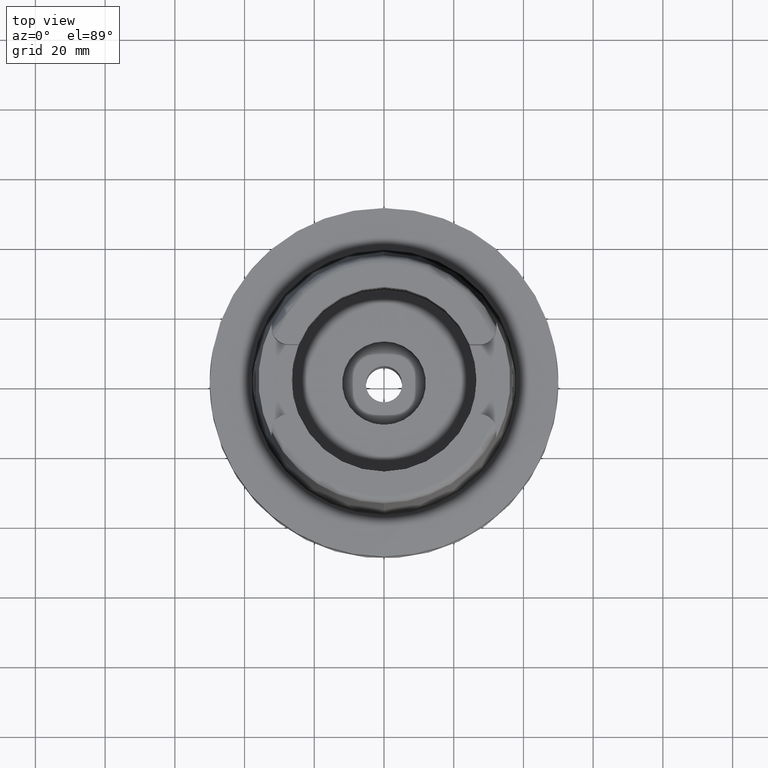
[diagram: clean part render]
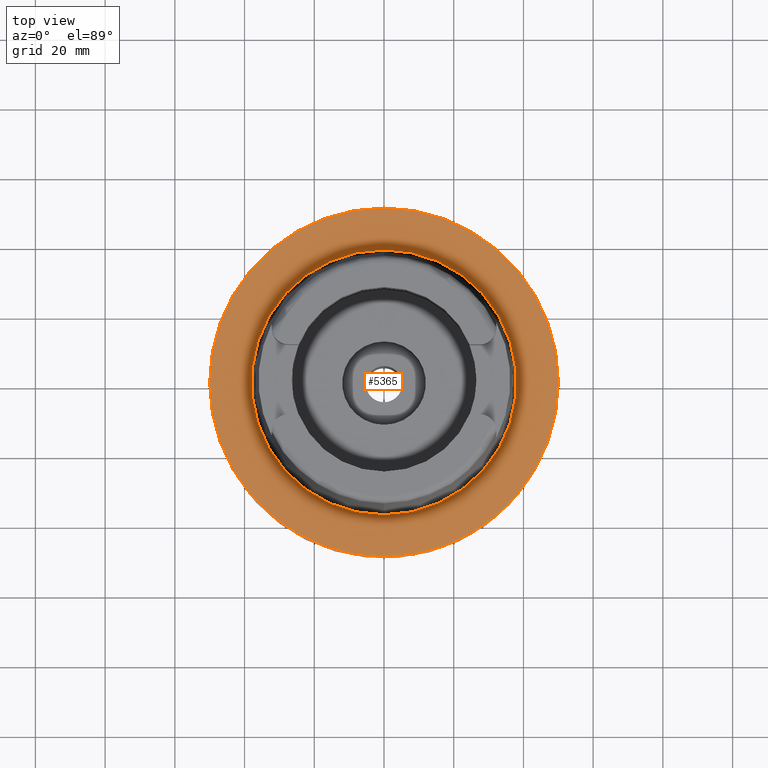
[diagram: same view with one face highlighted and labeled with its STEP entity id]
A machine part, top view. The second image highlights one B-rep face of the part: STEP entity #5365.
In plain terms, the highlighted planar face has unit normal (0, 0, 1).
Its self-contained STEP definition (entity closure, byte-faithful):
#53 = ORIENTED_EDGE ( 'NONE', *, *, #2460, .F. ) ;
#162 = AXIS2_PLACEMENT_3D ( 'NONE', #752, #2215, #3008 ) ;
#346 = CARTESIAN_POINT ( 'NONE',  ( 0.0000000000000000000, 0.0000000000000000000, 0.0000000000000000000 ) ) ;
#576 = DIRECTION ( 'NONE',  ( 0.0000000000000000000, 0.0000000000000000000, 1.000000000000000000 ) ) ;
#604 = DIRECTION ( 'NONE',  ( 1.000000000000000000, 0.0000000000000000000, 0.0000000000000000000 ) ) ;
#663 = PLANE ( 'NONE',  #2315 ) ;
#688 = AXIS2_PLACEMENT_3D ( 'NONE', #5302, #4845, #2703 ) ;
#752 = CARTESIAN_POINT ( 'NONE',  ( 0.0000000000000000000, 0.0000000000000000000, 0.0000000000000000000 ) ) ;
#836 = DIRECTION ( 'NONE',  ( 0.0000000000000000000, 1.000000000000000000, 0.0000000000000000000 ) ) ;
#849 = CARTESIAN_POINT ( 'NONE',  ( 0.0000000000000000000, -38.00001658251999714, 6.110667527536999933E-13 ) ) ;
#1127 = EDGE_LOOP ( 'NONE', ( #3144, #2333 ) ) ;
#1681 = AXIS2_PLACEMENT_3D ( 'NONE', #346, #4276, #836 ) ;
#1784 = EDGE_LOOP ( 'NONE', ( #3061, #53 ) ) ;
#2012 = DIRECTION ( 'NONE',  ( 0.0000000000000000000, 0.0000000000000000000, 1.000000000000000000 ) ) ;
#2215 = DIRECTION ( 'NONE',  ( 0.0000000000000000000, 0.0000000000000000000, -1.000000000000000000 ) ) ;
#2261 = EDGE_CURVE ( 'NONE', #5083, #3399, #5388, .T. ) ;
#2315 = AXIS2_PLACEMENT_3D ( 'NONE', #4450, #576, #604 ) ;
#2333 = ORIENTED_EDGE ( 'NONE', *, *, #3702, .F. ) ;
#2460 = EDGE_CURVE ( 'NONE', #3399, #5083, #3210, .T. ) ;
#2483 = CIRCLE ( 'NONE', #1681, 50.00000000000000000 ) ;
#2703 = DIRECTION ( 'NONE',  ( 0.0000000000000000000, 1.000000000000000000, 0.0000000000000000000 ) ) ;
#3008 = DIRECTION ( 'NONE',  ( 0.0000000000000000000, -1.000000000000000000, 0.0000000000000000000 ) ) ;
#3061 = ORIENTED_EDGE ( 'NONE', *, *, #2261, .F. ) ;
#3144 = ORIENTED_EDGE ( 'NONE', *, *, #4058, .F. ) ;
#3210 = CIRCLE ( 'NONE', #5392, 38.00001658251999714 ) ;
#3277 = CARTESIAN_POINT ( 'NONE',  ( 0.0000000000000000000, -50.00000000000000000, 0.0000000000000000000 ) ) ;
#3399 = VERTEX_POINT ( 'NONE', #849 ) ;
#3702 = EDGE_CURVE ( 'NONE', #3878, #4629, #3947, .T. ) ;
#3878 = VERTEX_POINT ( 'NONE', #3277 ) ;
#3947 = CIRCLE ( 'NONE', #162, 50.00000000000000000 ) ;
#4011 = CARTESIAN_POINT ( 'NONE',  ( 0.0000000000000000000, 50.00000000000000000, 0.0000000000000000000 ) ) ;
#4058 = EDGE_CURVE ( 'NONE', #4629, #3878, #2483, .T. ) ;
#4229 = CARTESIAN_POINT ( 'NONE',  ( 0.0000000000000000000, 38.00001658251999714, 1.023181539494999863E-12 ) ) ;
#4276 = DIRECTION ( 'NONE',  ( 0.0000000000000000000, 0.0000000000000000000, -1.000000000000000000 ) ) ;
#4450 = CARTESIAN_POINT ( 'NONE',  ( 0.0000000000000000000, 0.0000000000000000000, 1.421085471519999843E-14 ) ) ;
#4629 = VERTEX_POINT ( 'NONE', #4011 ) ;
#4845 = DIRECTION ( 'NONE',  ( 0.0000000000000000000, 0.0000000000000000000, 1.000000000000000000 ) ) ;
#5083 = VERTEX_POINT ( 'NONE', #4229 ) ;
#5296 = FACE_BOUND ( 'NONE', #1784, .T. ) ;
#5302 = CARTESIAN_POINT ( 'NONE',  ( 0.0000000000000000000, 0.0000000000000000000, 1.023181539494999863E-12 ) ) ;
#5365 = ADVANCED_FACE ( 'NONE', ( #5384, #5296 ), #663, .T. ) ;
#5384 = FACE_OUTER_BOUND ( 'NONE', #1127, .T. ) ;
#5388 = CIRCLE ( 'NONE', #688, 38.00001658251999714 ) ;
#5392 = AXIS2_PLACEMENT_3D ( 'NONE', #5448, #2012, #5422 ) ;
#5422 = DIRECTION ( 'NONE',  ( 0.0000000000000000000, -1.000000000000000000, 0.0000000000000000000 ) ) ;
#5448 = CARTESIAN_POINT ( 'NONE',  ( 0.0000000000000000000, 0.0000000000000000000, 1.023181539494999863E-12 ) ) ;